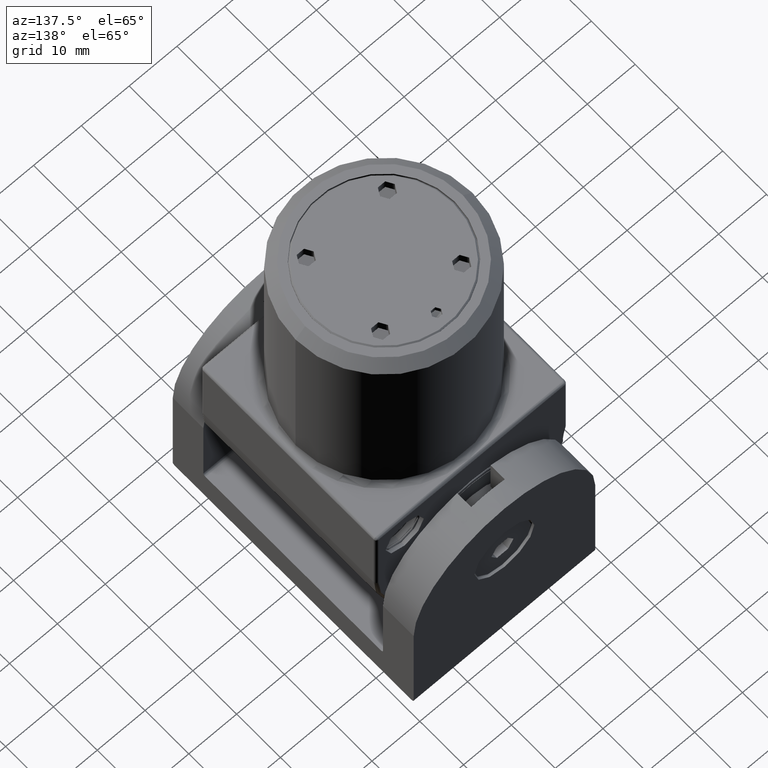
[diagram: clean part render]
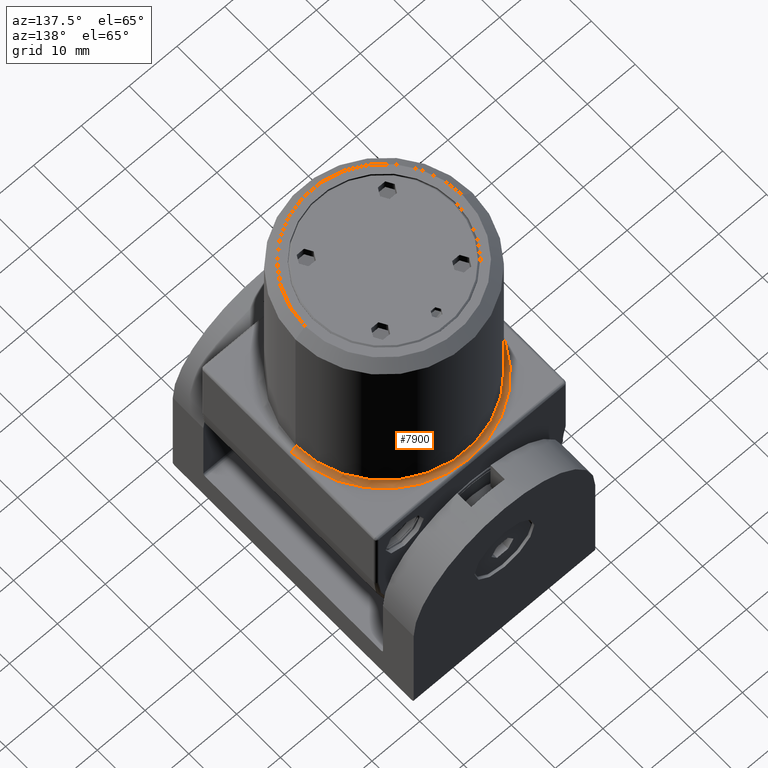
[diagram: same view with one face highlighted and labeled with its STEP entity id]
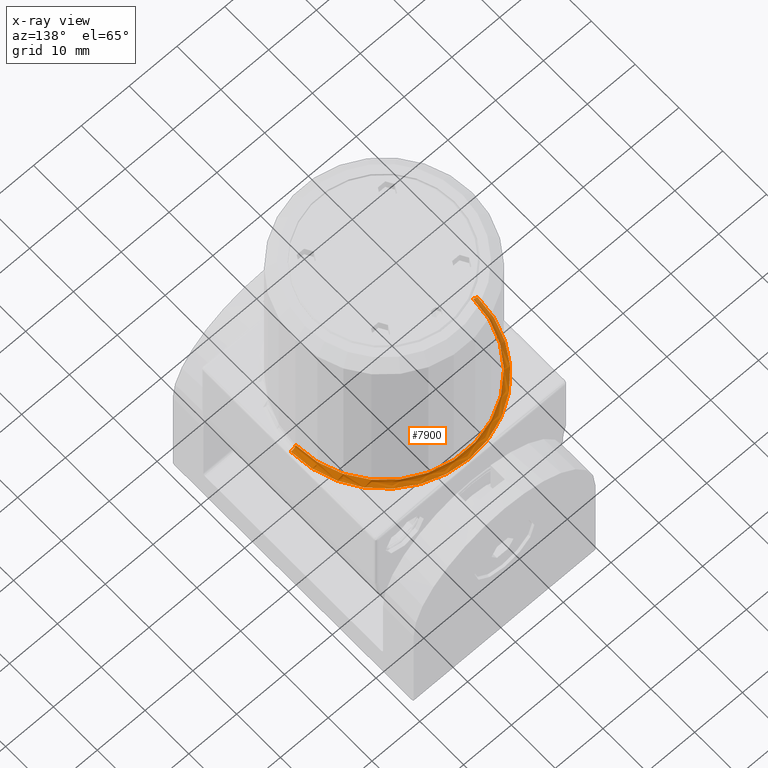
[diagram: x-ray of the same camera — body ghosted, the highlighted face saturated]
A machine part, auxiliary view. The second image highlights one B-rep face of the part: STEP entity #7900.
The next image is the same camera in x-ray: the body ghosted, the highlighted face saturated — about 10% of this face is hidden behind the body in this view.
In plain terms, the highlighted toroidal blend (fillet) surface has major radius 19.5 mm and minor (blend) radius 1 mm.
Its self-contained STEP definition (entity closure, byte-faithful):
#2 = CARTESIAN_POINT ( 'NONE',  ( -18.50000000000000000, 0.000000000000000000, 1.000000000000000888 ) ) ;
#470 = DIRECTION ( 'NONE',  ( -1.000000000000000000, 0.000000000000000000, 0.000000000000000000 ) ) ;
#1227 = CIRCLE ( 'NONE', #10386, 1.000000000000000888 ) ;
#1426 = TOROIDAL_SURFACE ( 'NONE', #14426, 19.50000000000000000, 1.000000000000000000 ) ;
#1845 = DIRECTION ( 'NONE',  ( 0.000000000000000000, 0.000000000000000000, -1.000000000000000000 ) ) ;
#2086 = CIRCLE ( 'NONE', #9529, 18.50000000000000000 ) ;
#2235 = VERTEX_POINT ( 'NONE', #3528 ) ;
#2362 = DIRECTION ( 'NONE',  ( -1.224646799147353207E-16, 1.000000000000000000, 0.000000000000000000 ) ) ;
#2444 = DIRECTION ( 'NONE',  ( 0.000000000000000000, 0.000000000000000000, -1.000000000000000000 ) ) ;
#2548 = VERTEX_POINT ( 'NONE', #4606 ) ;
#3462 = EDGE_CURVE ( 'NONE', #2548, #2235, #10875, .T. ) ;
#3528 = CARTESIAN_POINT ( 'NONE',  ( 0.000000000000000000, 19.50000000000000000, 0.000000000000000000 ) ) ;
#4460 = ORIENTED_EDGE ( 'NONE', *, *, #5188, .T. ) ;
#4527 = VERTEX_POINT ( 'NONE', #10332 ) ;
#4606 = CARTESIAN_POINT ( 'NONE',  ( -19.50000000000000000, 0.000000000000000000, 0.000000000000000000 ) ) ;
#4613 = DIRECTION ( 'NONE',  ( 0.000000000000000000, 0.000000000000000000, -1.000000000000000000 ) ) ;
#4972 = ORIENTED_EDGE ( 'NONE', *, *, #10723, .F. ) ;
#5188 = EDGE_CURVE ( 'NONE', #2548, #11012, #17452, .T. ) ;
#5304 = FACE_OUTER_BOUND ( 'NONE', #8044, .T. ) ;
#5488 = AXIS2_PLACEMENT_3D ( 'NONE', #13482, #12145, #15134 ) ;
#6006 = CARTESIAN_POINT ( 'NONE',  ( 0.000000000000000000, 0.000000000000000000, 0.000000000000000000 ) ) ;
#6027 = EDGE_CURVE ( 'NONE', #4527, #13371, #1227, .T. ) ;
#6173 = AXIS2_PLACEMENT_3D ( 'NONE', #6006, #4613, #7724 ) ;
#6727 = CARTESIAN_POINT ( 'NONE',  ( 18.50000000000000000, 2.265596578422603396E-15, 1.000000000000000888 ) ) ;
#7724 = DIRECTION ( 'NONE',  ( -1.000000000000000000, 0.000000000000000000, 0.000000000000000000 ) ) ;
#7900 = ADVANCED_FACE ( 'NONE', ( #5304 ), #1426, .F. ) ;
#8044 = EDGE_LOOP ( 'NONE', ( #17217, #4972, #14396, #4460, #13657 ) ) ;
#8368 = EDGE_CURVE ( 'NONE', #13371, #11012, #2086, .T. ) ;
#9529 = AXIS2_PLACEMENT_3D ( 'NONE', #12849, #18493, #15780 ) ;
#9671 = CIRCLE ( 'NONE', #13733, 19.50000000000000000 ) ;
#10332 = CARTESIAN_POINT ( 'NONE',  ( 19.50000000000000000, 0.000000000000000000, 0.000000000000000000 ) ) ;
#10386 = AXIS2_PLACEMENT_3D ( 'NONE', #11287, #2362, #13956 ) ;
#10723 = EDGE_CURVE ( 'NONE', #2235, #4527, #9671, .T. ) ;
#10875 = CIRCLE ( 'NONE', #6173, 19.50000000000000000 ) ;
#11012 = VERTEX_POINT ( 'NONE', #2 ) ;
#11187 = CARTESIAN_POINT ( 'NONE',  ( 0.000000000000000000, 0.000000000000000000, 1.000000000000000888 ) ) ;
#11287 = CARTESIAN_POINT ( 'NONE',  ( 19.50000000000000000, 2.388061258337338939E-15, 1.000000000000000888 ) ) ;
#12145 = DIRECTION ( 'NONE',  ( -0.000000000000000000, -1.000000000000000000, -0.000000000000000000 ) ) ;
#12644 = DIRECTION ( 'NONE',  ( -1.000000000000000000, 0.000000000000000000, 0.000000000000000000 ) ) ;
#12849 = CARTESIAN_POINT ( 'NONE',  ( 0.000000000000000000, 0.000000000000000000, 1.000000000000000888 ) ) ;
#13371 = VERTEX_POINT ( 'NONE', #6727 ) ;
#13482 = CARTESIAN_POINT ( 'NONE',  ( -19.50000000000000000, 0.000000000000000000, 1.000000000000000888 ) ) ;
#13657 = ORIENTED_EDGE ( 'NONE', *, *, #8368, .F. ) ;
#13733 = AXIS2_PLACEMENT_3D ( 'NONE', #13751, #1845, #470 ) ;
#13751 = CARTESIAN_POINT ( 'NONE',  ( 0.000000000000000000, 0.000000000000000000, 0.000000000000000000 ) ) ;
#13956 = DIRECTION ( 'NONE',  ( -1.000000000000000000, -1.224646799147353454E-16, 0.000000000000000000 ) ) ;
#14396 = ORIENTED_EDGE ( 'NONE', *, *, #3462, .F. ) ;
#14426 = AXIS2_PLACEMENT_3D ( 'NONE', #11187, #2444, #12644 ) ;
#15134 = DIRECTION ( 'NONE',  ( 0.000000000000000000, 0.000000000000000000, -1.000000000000000000 ) ) ;
#15780 = DIRECTION ( 'NONE',  ( -1.000000000000000000, 0.000000000000000000, 0.000000000000000000 ) ) ;
#17217 = ORIENTED_EDGE ( 'NONE', *, *, #6027, .F. ) ;
#17452 = CIRCLE ( 'NONE', #5488, 1.000000000000000000 ) ;
#18493 = DIRECTION ( 'NONE',  ( -0.000000000000000000, -0.000000000000000000, 1.000000000000000000 ) ) ;